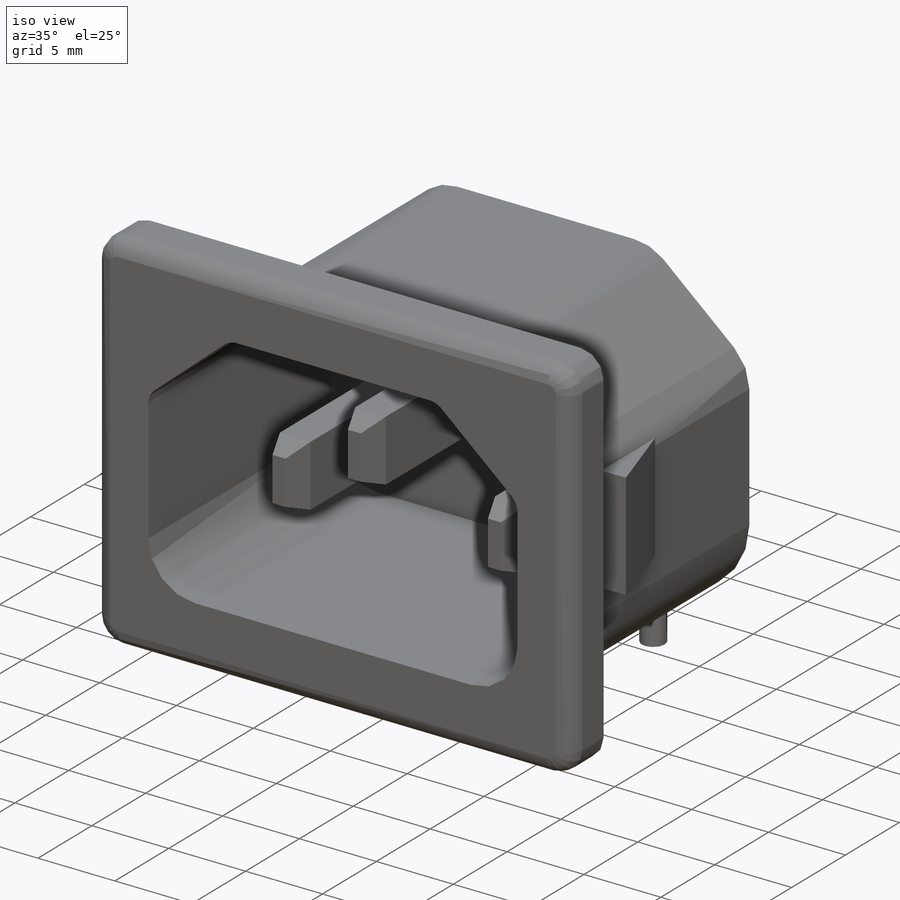
[diagram: iso view]
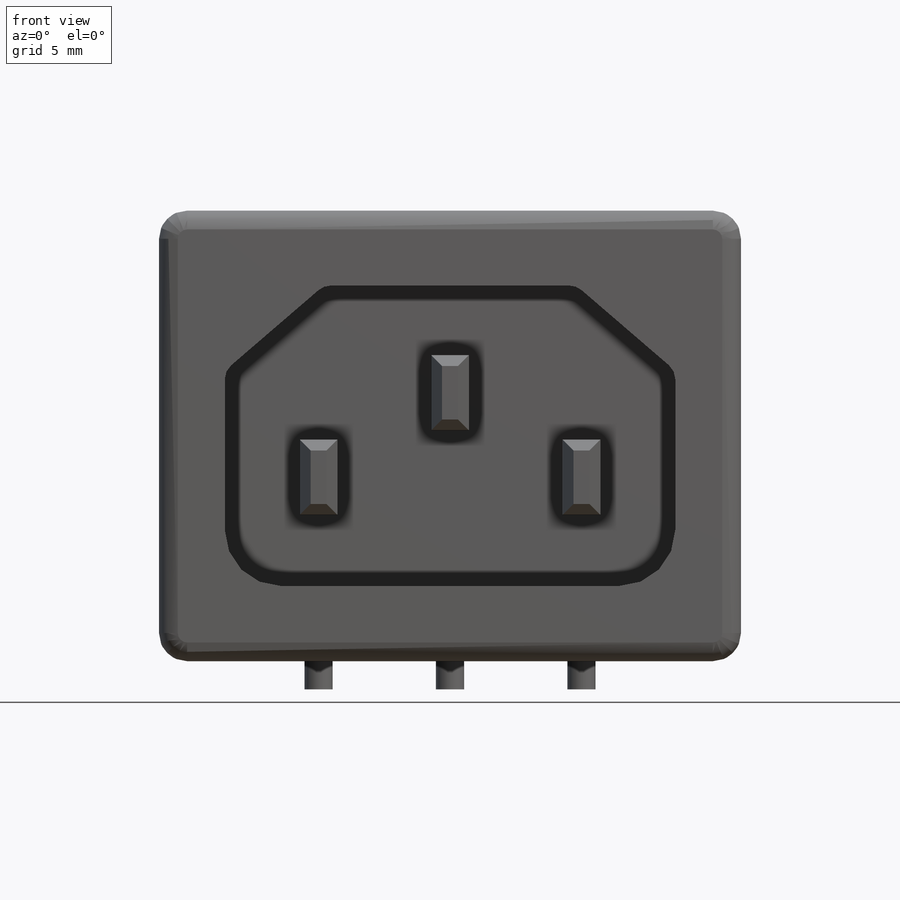
[diagram: front view]
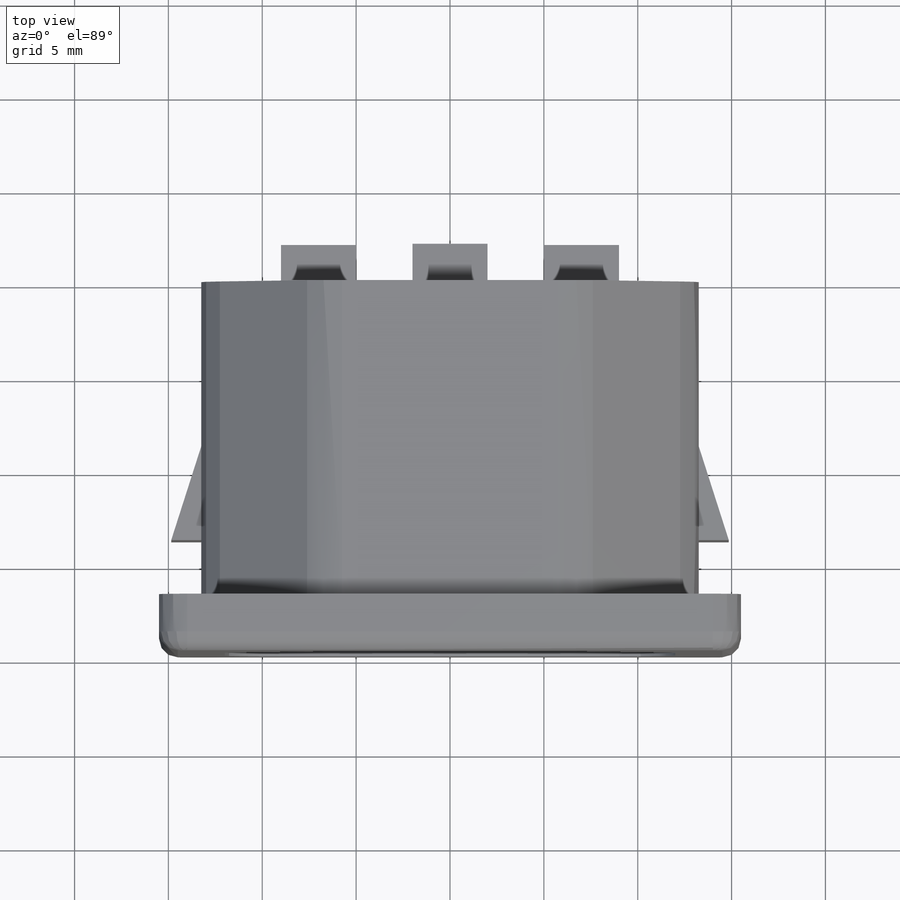
[diagram: top view]
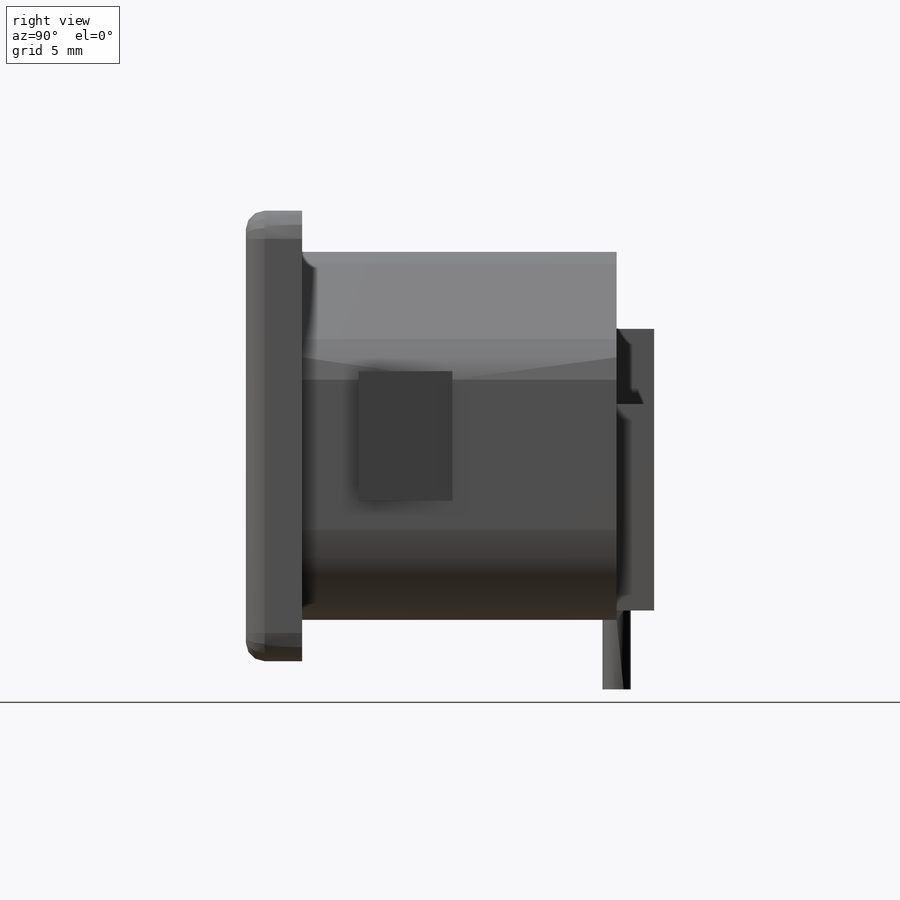
[diagram: right view]
SOLIDWORKS PART (.sldprt)
format: sldprt  version: not decoded by parser v0  size: 415,744 bytes
history: native  units: mm
features: sketch x8, extrude x5, cut_extrude x3, material x1, chamfer x1, fillet x1 (+12 scaffold rows collapsed)
feature tree (31):
  scaffold x12  (default folders/planes/origin — collapsed)
  material  "Material <not specified>"
  sketch  "Sketch1"  dims[D5=1.5mm D1=31.0mm D2=15.5mm D3=24.0mm D4=12.0mm]
  extrude  "Extrude1"  Depth=19.75mm
  sketch  "Sketch2"  dims[D1=1.0mm D7=3.0mm D2=24.0mm D3=12.0mm D4=16.0mm D5=4.0mm D6=11.0mm D8=12.7mm D9=6.35mm]
  cut_extrude  "Cut-Extrude1"  Depth=17mm
  sketch  "Sketch3"  dims[c1.D1=26.5mm c1.D2=13.25mm c2.D1=26.5mm c2.D2=19.6mm c2.D3=2.2mm c3.D1=1.85mm]
  cut_extrude  "Cut-Extrude2"  Depth=16.75mm
  sketch  "Sketch4"  dims[D1=4.0mm D2=2.0mm D3=14.0mm D4=5.7mm D5=4.5mm D6=3.5mm]
  extrude  "Extrude2"  Depth=15mm
  sketch  "Sketch5"
  cut_extrude  "Cut-Extrude3"  Depth=3mm
  chamfer  "Chamfer1"  Distance=1.5mm Angle=21deg
  fillet  "Fillet1"  Radius=1mm
  sketch  "Sketch6"  dims[D1=3.0mm D2=5.0mm D3=29.7mm]
  extrude  "Extrude3"  Depth=6.9mm
  sketch  "Sketch7"  dims[D1=11.0mm D2=15.0mm D3=4.0mm D4=7.0mm D5=0.5mm]
  extrude  "Extrude4"  Depth=2mm
  sketch  "Sketch8"  dims[D3=1.5mm D1=14.0mm D2=7.0mm D4=19.75mm]
  extrude  "Extrude5"  Depth=4.2mm
decode coverage: 17 of 18 modeling features carry decoded parameters
note: suppression state not decoded; provenance and decode notes live in map.json
